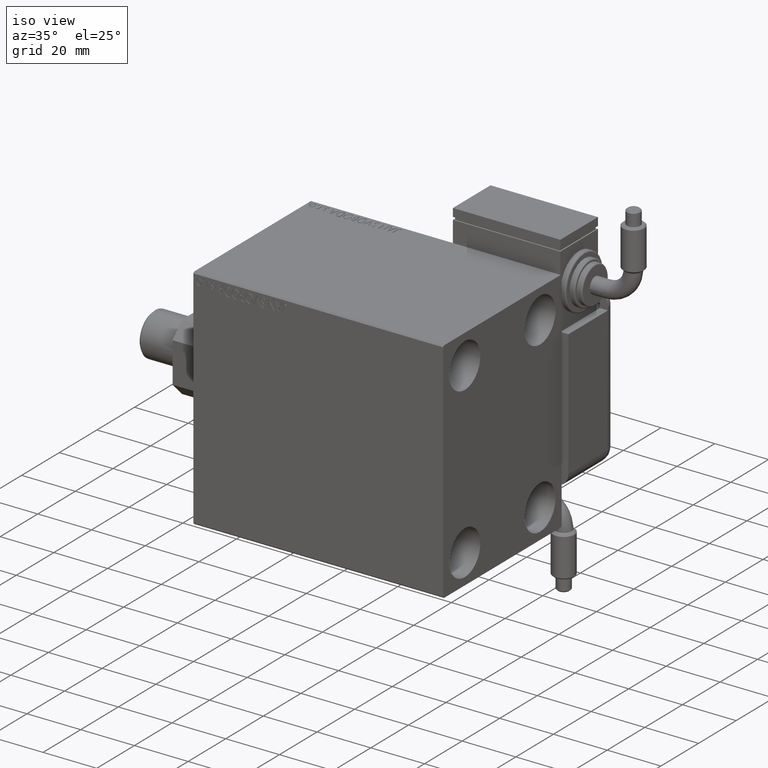
[diagram: clean part render]
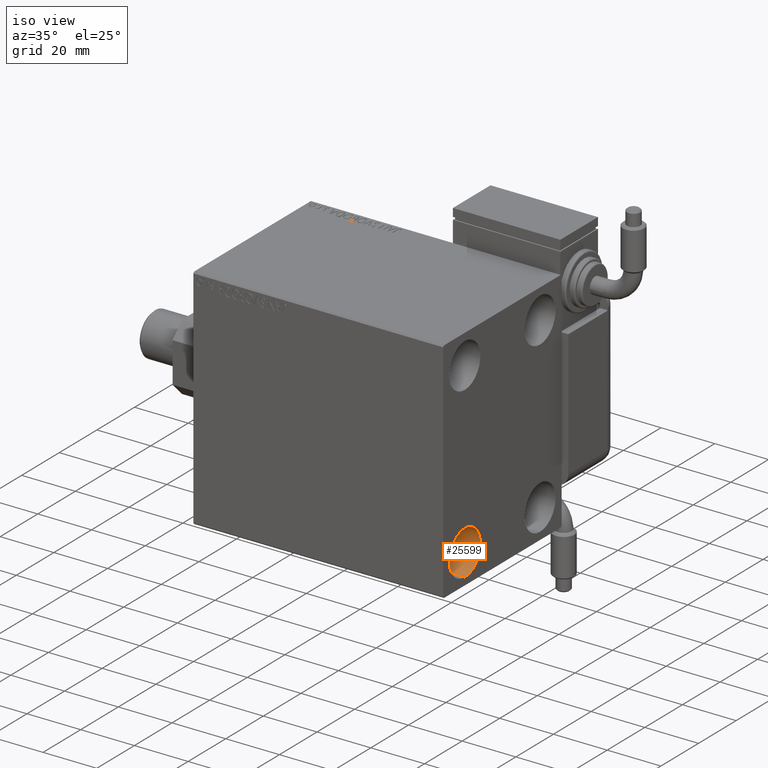
[diagram: same view with one face highlighted and labeled with its STEP entity id]
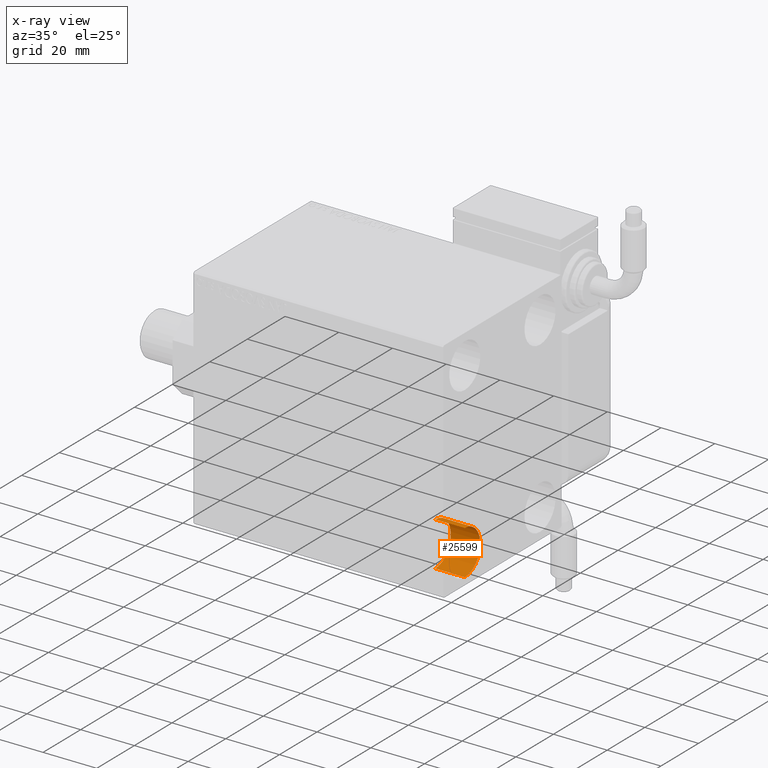
[diagram: x-ray of the same camera — body ghosted, the highlighted face saturated]
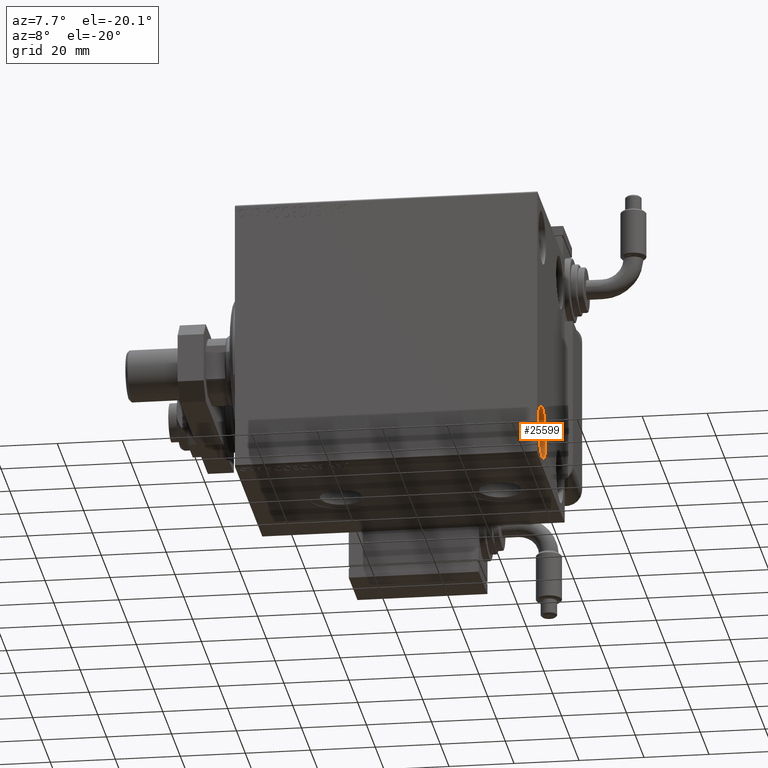
[diagram: same view with one face highlighted and labeled with its STEP entity id]
A machine part, iso view. The second image highlights one B-rep face of the part: STEP entity #25599.
The next image is the same camera in x-ray: the body ghosted, the highlighted face saturated — about 0% of this face is hidden behind the body in this view.
A second angle (auxiliary view) of the same face is appended — the face is thin or edge-on in the first view.
In plain terms, the highlighted cylindrical surface (edge-blend (fillet) strip) has radius 8.25 mm, axis along (1, 0, 0).
Its self-contained STEP definition (entity closure, byte-faithful):
#2814 = DIRECTION ( 'NONE',  ( 0.000000000000000000, 0.000000000000000000, 1.000000000000000000 ) ) ;
#5484 = ORIENTED_EDGE ( 'NONE', *, *, #5793, .T. ) ;
#5793 = EDGE_CURVE ( 'NONE', #11236, #60366, #52489, .T. ) ;
#7196 = CARTESIAN_POINT ( 'NONE',  ( 93.00000000000000000, -20.00000000000000355, -31.49999999999999289 ) ) ;
#9029 = LINE ( 'NONE', #13395, #52861 ) ;
#10486 = CARTESIAN_POINT ( 'NONE',  ( 93.00000000000000000, -20.00000000000000355, -39.74999999999999289 ) ) ;
#11236 = VERTEX_POINT ( 'NONE', #31608 ) ;
#11293 = DIRECTION ( 'NONE',  ( 0.000000000000000000, 0.000000000000000000, -1.000000000000000000 ) ) ;
#11895 = CYLINDRICAL_SURFACE ( 'NONE', #29249, 8.250000000000000000 ) ;
#13395 = CARTESIAN_POINT ( 'NONE',  ( 82.00000000000000000, -20.00000000000000355, -23.24999999999999289 ) ) ;
#15295 = CARTESIAN_POINT ( 'NONE',  ( 82.00000000000000000, -20.00000000000000355, -39.74999999999999289 ) ) ;
#15969 = FACE_OUTER_BOUND ( 'NONE', #55680, .T. ) ;
#17368 = ORIENTED_EDGE ( 'NONE', *, *, #51109, .T. ) ;
#22747 = VERTEX_POINT ( 'NONE', #32046 ) ;
#23504 = AXIS2_PLACEMENT_3D ( 'NONE', #7196, #45600, #2814 ) ;
#24669 = DIRECTION ( 'NONE',  ( 1.000000000000000000, -0.000000000000000000, -0.000000000000000000 ) ) ;
#25599 = ADVANCED_FACE ( 'NONE', ( #15969 ), #11895, .F. ) ;
#29249 = AXIS2_PLACEMENT_3D ( 'NONE', #35030, #54061, #11293 ) ;
#30803 = EDGE_CURVE ( 'NONE', #22747, #60366, #43473, .T. ) ;
#31608 = CARTESIAN_POINT ( 'NONE',  ( 82.00000000000000000, -20.00000000000000355, -39.74999999999999289 ) ) ;
#31837 = CARTESIAN_POINT ( 'NONE',  ( 82.00000000000000000, -20.00000000000000355, -23.24999999999999289 ) ) ;
#31932 = DIRECTION ( 'NONE',  ( -1.000000000000000000, -0.000000000000000000, -0.000000000000000000 ) ) ;
#32046 = CARTESIAN_POINT ( 'NONE',  ( 93.00000000000000000, -20.00000000000000355, -23.24999999999999289 ) ) ;
#35030 = CARTESIAN_POINT ( 'NONE',  ( 82.00000000000000000, -20.00000000000000355, -31.49999999999999289 ) ) ;
#36004 = CARTESIAN_POINT ( 'NONE',  ( 82.00000000000000000, -20.00000000000000355, -31.49999999999999289 ) ) ;
#36731 = CIRCLE ( 'NONE', #44735, 8.250000000000000000 ) ;
#40975 = VERTEX_POINT ( 'NONE', #31837 ) ;
#43473 = CIRCLE ( 'NONE', #23504, 8.250000000000000000 ) ;
#44735 = AXIS2_PLACEMENT_3D ( 'NONE', #36004, #31932, #55031 ) ;
#45600 = DIRECTION ( 'NONE',  ( -1.000000000000000000, -0.000000000000000000, -0.000000000000000000 ) ) ;
#47642 = VECTOR ( 'NONE', #24669, 1000.000000000000000 ) ;
#50230 = ORIENTED_EDGE ( 'NONE', *, *, #60130, .F. ) ;
#51109 = EDGE_CURVE ( 'NONE', #40975, #11236, #36731, .T. ) ;
#51497 = DIRECTION ( 'NONE',  ( 1.000000000000000000, -0.000000000000000000, -0.000000000000000000 ) ) ;
#52362 = ORIENTED_EDGE ( 'NONE', *, *, #30803, .F. ) ;
#52489 = LINE ( 'NONE', #15295, #47642 ) ;
#52861 = VECTOR ( 'NONE', #51497, 1000.000000000000000 ) ;
#54061 = DIRECTION ( 'NONE',  ( 1.000000000000000000, -0.000000000000000000, -0.000000000000000000 ) ) ;
#55031 = DIRECTION ( 'NONE',  ( 0.000000000000000000, 0.000000000000000000, 1.000000000000000000 ) ) ;
#55680 = EDGE_LOOP ( 'NONE', ( #50230, #17368, #5484, #52362 ) ) ;
#60130 = EDGE_CURVE ( 'NONE', #40975, #22747, #9029, .T. ) ;
#60366 = VERTEX_POINT ( 'NONE', #10486 ) ;